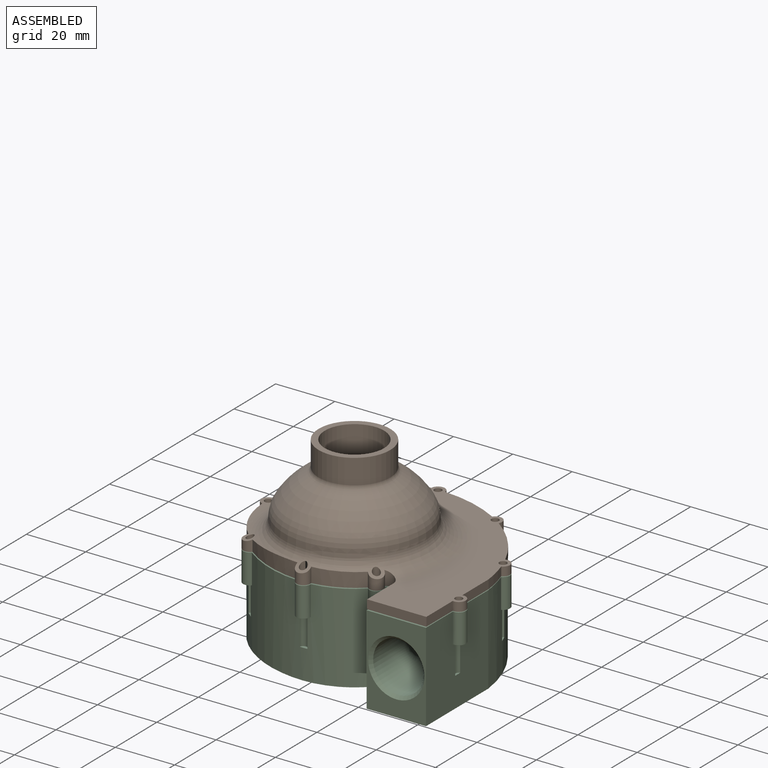
[diagram: assembled view]
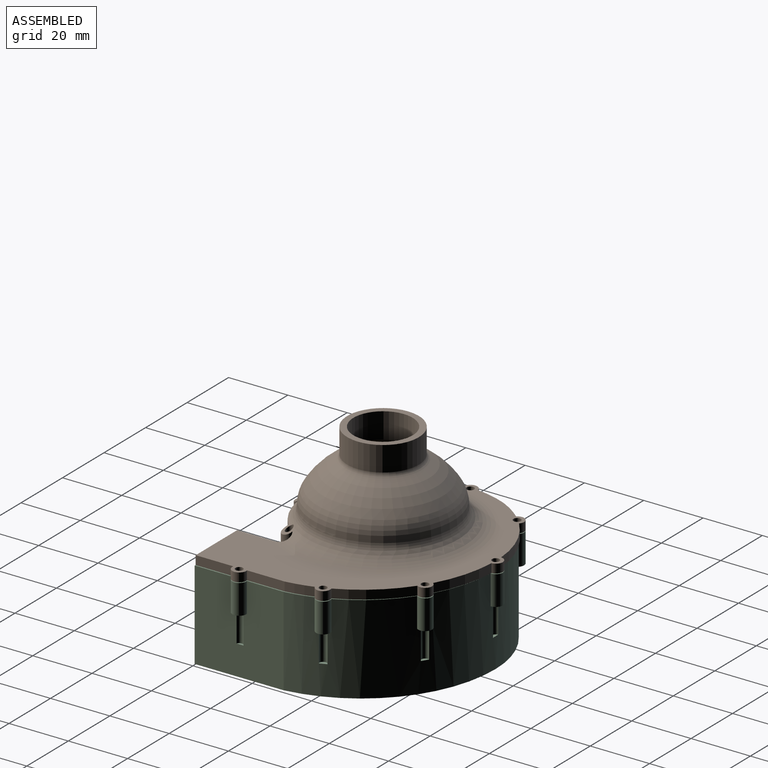
[diagram: assembled view, second angle]
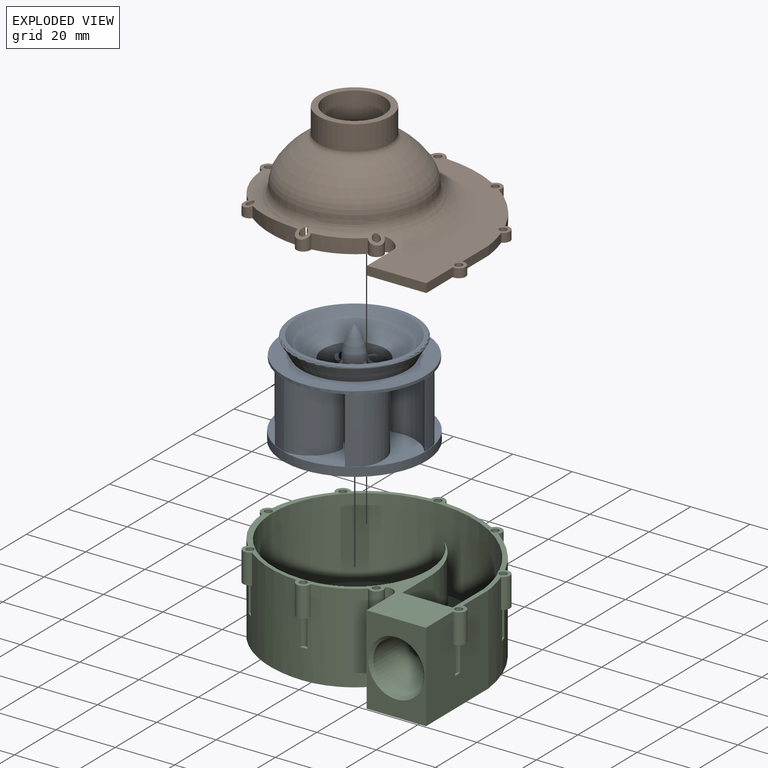
[diagram: exploded view]
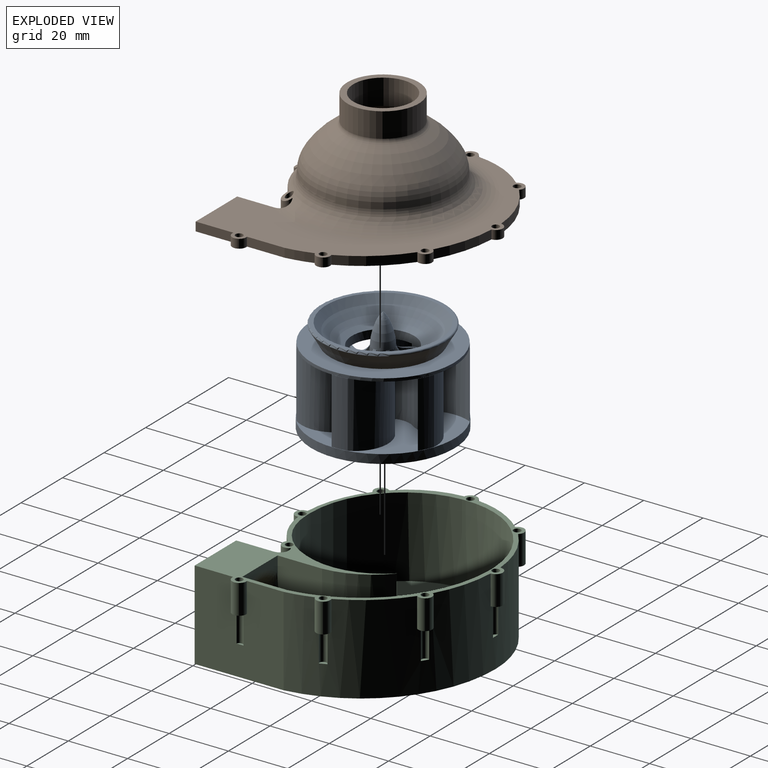
[diagram: exploded view, second angle]
ASSEMBLY  parts=3 mates=2
PART A: 136 faces, bbox 58.5x58.5x71 mm
  f0: cylinder r=3.66mm len=22mm, axis (0,0,1), area 59.7mm2, adj f56,f72,f86,f118
  f1: cylinder r=3.66mm len=22mm, axis (0,0,1), area 59.7mm2, adj f69,f71,f86,f118
  f2: cylinder r=3.66mm len=22mm, axis (0,0,1), area 59.7mm2, adj f66,f68,f86,f118
  f3: cylinder r=3.66mm len=22mm, axis (0,0,1), area 59.7mm2, adj f63,f65,f86,f118
  f4: cylinder r=3.66mm len=22mm, axis (0,0,1), area 59.7mm2, adj f60,f62,f86,f118
  f5: torus R=62.5mm, axis (0,0,1), area 33.3mm2, adj f31,f52,f84,f114,f125
  f6: torus R=62.5mm, axis (0,0,1), area 33.3mm2, adj f33,f37,f83,f113,f120
  f7: torus R=62.5mm, axis (0,0,1), area 33.3mm2, adj f36,f39,f81,f112,f121
  f8: torus R=62.5mm, axis (0,0,1), area 33.3mm2, adj f41,f43,f79,f111,f122
  f9: torus R=62.5mm, axis (0,0,1), area 33.3mm2, adj f45,f47,f77,f116,f123
  f10: torus R=62.5mm, axis (0,0,1), area 33.3mm2, adj f49,f51,f75,f115,f124
  f11: cylinder r=3.66mm len=22mm, axis (0,0,1), area 59.7mm2, adj f57,f59,f86,f118
  f12: cylinder r=10.72mm len=22mm, axis (0,0,1), area 468.3mm2, adj f14,f15,f17,f18,f20,f21,f23,f24
  f13: cylinder r=12.5mm len=0.63mm, axis (0,0,-1), area 0.1mm2, adj f14,f51,f73,f118
  f14: plane 19.09x2.8mm, normal (0,1,0), area 47mm2, adj f12,f13,f51,f64,f73,f75,f118
  f15: plane 19.08x1.62mm, normal (0.87,-0.5,0), area 35.6mm2, adj f12,f53,f84,f118
  f16: cylinder r=12.5mm len=0.63mm, axis (0,0,-1), area 0.1mm2, adj f17,f47,f76,f118
  f17: plane 19.09x2.42mm, normal (0.87,0.5,0), area 47mm2, adj f12,f16,f47,f67,f76,f77,f118
  f18: plane 19.08x1.87mm, normal (0,-1,0), area 35.6mm2, adj f12,f48,f75,f118
  f19: cylinder r=12.5mm len=0.63mm, axis (0,0,-1), area 0.1mm2, adj f20,f43,f78,f118
  f20: plane 19.09x2.42mm, normal (0.87,-0.5,0), area 47mm2, adj f12,f19,f43,f70,f78,f79,f118
  f21: plane 19.08x1.62mm, normal (-0.87,-0.5,0), area 35.6mm2, adj f12,f44,f77,f118
  f22: cylinder r=12.5mm len=0.63mm, axis (0,0,-1), area 0.1mm2, adj f23,f39,f80,f118
  f23: plane 19.09x2.8mm, normal (0,-1,0), area 47mm2, adj f12,f22,f39,f55,f80,f81,f118
  f24: plane 19.08x1.62mm, normal (-0.87,0.5,0), area 35.6mm2, adj f12,f40,f79,f118
  f25: cylinder r=12.5mm len=0.63mm, axis (0,0,-1), area 0.1mm2, adj f27,f37,f82,f118
  f26: plane 19.08x1.87mm, normal (0,1,0), area 35.6mm2, adj f12,f35,f81,f118
  f27: plane 19.09x2.42mm, normal (-0.87,-0.5,0), area 47mm2, adj f12,f25,f37,f58,f82,f83,f118
  f28: plane 19.09x2.42mm, normal (-0.87,0.5,0), area 47mm2, adj f12,f30,f31,f61,f84,f85,f118
  f29: plane 19.08x1.62mm, normal (0.87,0.5,0), area 35.6mm2, adj f12,f32,f83,f118
  f30: cylinder r=12.5mm len=0.63mm, axis (0,0,-1), area 0.1mm2, adj f28,f31,f85,f118
  f31: cylinder r=14.39mm len=22mm, axis (0,0,-1), area 296.5mm2, adj f5,f28,f30,f34,f84,f85,f96,f118
  f32: cylinder r=5.81mm len=19.08mm, axis (0,0,-1), area 0.4mm2, adj f29,f33,f83,f118
  f33: cylinder r=11.13mm len=22mm, axis (0,0,-1), area 388.5mm2, adj f6,f32,f34,f83,f92,f96,f113,f118
  f34: cylinder r=24mm len=22mm, axis (0,0,-1), area 113.2mm2, adj f31,f33,f96,f118
  f35: cylinder r=5.81mm len=19.08mm, axis (0,0,-1), area 0.4mm2, adj f26,f36,f81,f118
  f36: cylinder r=11.13mm len=22mm, axis (0,0,-1), area 388.5mm2, adj f7,f35,f38,f81,f87,f97,f112,f118
  f37: cylinder r=14.39mm len=22mm, axis (0,0,-1), area 296.5mm2, adj f6,f25,f27,f38,f82,f83,f97,f118
  f38: cylinder r=24mm len=22mm, axis (0,0,-1), area 113.2mm2, adj f36,f37,f97,f118
  f39: cylinder r=14.39mm len=22mm, axis (0,0,-1), area 296.5mm2, adj f7,f22,f23,f42,f80,f81,f98,f118
  f40: cylinder r=5.81mm len=19.08mm, axis (0,0,-1), area 0.4mm2, adj f24,f41,f79,f118
  f41: cylinder r=11.13mm len=22mm, axis (0,0,-1), area 388.5mm2, adj f8,f40,f42,f79,f88,f98,f111,f118
  f42: cylinder r=24mm len=22mm, axis (0,0,-1), area 113.2mm2, adj f39,f41,f98,f118
  f43: cylinder r=14.39mm len=22mm, axis (0,0,-1), area 296.5mm2, adj f8,f19,f20,f46,f78,f79,f99,f118
  f44: cylinder r=5.81mm len=19.08mm, axis (0,0,-1), area 0.4mm2, adj f21,f45,f77,f118
  f45: cylinder r=11.13mm len=22mm, axis (0,0,-1), area 388.5mm2, adj f9,f44,f46,f77,f89,f99,f116,f118
  f46: cylinder r=24mm len=22mm, axis (0,0,-1), area 113.2mm2, adj f43,f45,f99,f118
  f47: cylinder r=14.39mm len=22mm, axis (0,0,-1), area 296.5mm2, adj f9,f16,f17,f50,f76,f77,f100,f118
  f48: cylinder r=5.81mm len=19.08mm, axis (0,0,-1), area 0.4mm2, adj f18,f49,f75,f118
  f49: cylinder r=11.13mm len=22mm, axis (0,0,-1), area 388.5mm2, adj f10,f48,f50,f75,f90,f100,f115,f118
  f50: cylinder r=24mm len=22mm, axis (0,0,-1), area 113.2mm2, adj f47,f49,f100,f118
  f51: cylinder r=14.39mm len=22mm, axis (0,0,-1), area 296.5mm2, adj f10,f13,f14,f54,f73,f75,f101,f118
  f52: cylinder r=11.13mm len=22mm, axis (0,0,-1), area 388.5mm2, adj f5,f53,f54,f84,f91,f101,f114,f118
  f53: cylinder r=5.81mm len=19.08mm, axis (0,0,-1), area 0.4mm2, adj f15,f52,f84,f118
  f54: cylinder r=24mm len=22mm, axis (0,0,-1), area 113.2mm2, adj f51,f52,f101,f118
  f55: cone r=11.2mm half-angle=0deg, axis (0,0,1), area 0.4mm2, adj f23,f57,f104,f118
  f56: cone r=7.61mm half-angle=0deg, axis (0,0,1), area 162.2mm2, adj f0,f12,f104,f118,f133
  f57: cone r=7.53mm half-angle=0deg, axis (0,0,-1), area 153.3mm2, adj f11,f55,f104,f118,f133
  f58: cone r=11.2mm half-angle=0deg, axis (0,0,1), area 0.4mm2, adj f27,f60,f105,f118
  f59: cone r=7.61mm half-angle=0deg, axis (0,0,1), area 162.2mm2, adj f11,f12,f105,f118,f132
  f60: cone r=7.53mm half-angle=0deg, axis (0,0,-1), area 153.3mm2, adj f4,f58,f105,f118,f132
  f61: cone r=11.2mm half-angle=0deg, axis (0,0,1), area 0.4mm2, adj f28,f63,f106,f118
  f62: cone r=7.61mm half-angle=0deg, axis (0,0,1), area 162.2mm2, adj f4,f12,f106,f118,f131
  f63: cone r=7.53mm half-angle=0deg, axis (0,0,-1), area 153.3mm2, adj f3,f61,f106,f118,f131
  f64: cone r=11.2mm half-angle=0deg, axis (0,0,1), area 0.4mm2, adj f14,f66,f107,f118
  f65: cone r=7.61mm half-angle=0deg, axis (0,0,1), area 162.2mm2, adj f3,f12,f107,f118,f130
  f66: cone r=7.53mm half-angle=0deg, axis (0,0,-1), area 153.3mm2, adj f2,f64,f107,f118,f130
  f67: cone r=11.2mm half-angle=0deg, axis (0,0,1), area 0.4mm2, adj f17,f69,f108,f118
  f68: cone r=7.61mm half-angle=0deg, axis (0,0,1), area 162.2mm2, adj f2,f12,f108,f118,f129
  f69: cone r=7.53mm half-angle=0deg, axis (0,0,-1), area 153.3mm2, adj f1,f67,f108,f118,f129
  f70: cone r=11.2mm half-angle=0deg, axis (0,0,1), area 0.4mm2, adj f20,f72,f109,f118
  f71: cone r=7.61mm half-angle=0deg, axis (0,0,1), area 162.2mm2, adj f1,f12,f109,f118,f128
  f72: cone r=7.53mm half-angle=0deg, axis (0,0,-1), area 153.3mm2, adj f0,f70,f109,f118,f128
  f73: torus R=62.5mm, axis (0,0,1), area 0.6mm2, adj f13,f14,f51
  f74: torus R=62.5mm, axis (0,0,1), area 734.2mm2, adj f103,f127
  f75: plane 10.23x6.01mm, normal (0,0,-1), area 43.5mm2, adj f10,f12,f14,f18,f48,f49,f51,f90
  f76: torus R=62.5mm, axis (0,0,1), area 0.6mm2, adj f16,f17,f47
  f77: plane 9.12x8.82mm, normal (0,0,-1), area 43.5mm2, adj f9,f12,f17,f21,f44,f45,f47,f89
  f78: torus R=62.5mm, axis (0,0,1), area 0.6mm2, adj f19,f20,f43
  f79: plane 11.17x8.34mm, normal (0,0,-1), area 43.5mm2, adj f8,f12,f20,f24,f40,f41,f43,f88
  f80: torus R=62.5mm, axis (0,0,1), area 0.6mm2, adj f22,f23,f39
  f81: plane 10.23x6.01mm, normal (0,0,-1), area 43.5mm2, adj f7,f12,f23,f26,f35,f36,f39,f87
  f82: torus R=62.5mm, axis (0,0,1), area 0.6mm2, adj f25,f27,f37
  f83: plane 9.12x8.82mm, normal (0,0,-1), area 43.5mm2, adj f6,f12,f27,f29,f32,f33,f37,f92
  f84: plane 11.17x8.34mm, normal (0,0,-1), area 43.5mm2, adj f5,f12,f15,f28,f31,f52,f53,f91
  f85: torus R=62.5mm, axis (0,0,1), area 0.6mm2, adj f28,f30,f31
  f86: plane 7.32x7.32mm, normal (0,0,1), area 0.2mm2, adj f0,f1,f2,f3,f4,f11,f95,f128
  f87: plane 1.73x0.69mm, normal (0,1,0), area 0.6mm2, adj f36,f81,f112
  f88: plane 1.73x0.6mm, normal (-0.87,0.5,0), area 0.6mm2, adj f41,f79,f111
  f89: plane 1.73x0.6mm, normal (-0.87,-0.5,0), area 0.6mm2, adj f45,f77,f116
  f90: plane 1.73x0.69mm, normal (0,-1,0), area 0.6mm2, adj f49,f75,f115
  f91: plane 1.73x0.6mm, normal (0.87,-0.5,0), area 0.6mm2, adj f52,f84,f114
  f92: plane 1.73x0.6mm, normal (0.87,0.5,0), area 0.6mm2, adj f33,f83,f113
  f93: plane 21.44x21.44mm, normal (0,0,-1), area 14.5mm2, adj f12,f94
  f94: torus R=1.39mm, axis (0,0,-1), area 1076.6mm2, adj f93,f102
  f95: revolved ~7.3x7.3mm, area 141.5mm2, adj f86,f110
  f96: plane 4.52x2.82mm, normal (0,0,1), area 0.3mm2, adj f31,f33,f34,f126
  f97: plane 4.71x2.5mm, normal (0,0,1), area 0.3mm2, adj f36,f37,f38,f126
  f98: plane 5.33x0.33mm, normal (0,0,1), area 0.3mm2, adj f39,f41,f42,f126
  f99: plane 4.52x2.82mm, normal (0,0,1), area 0.3mm2, adj f43,f45,f46,f126
  f100: plane 4.71x2.5mm, normal (0,0,1), area 0.3mm2, adj f47,f49,f50,f126
  f101: plane 5.33x0.33mm, normal (0,0,1), area 0.3mm2, adj f51,f52,f54,f126
  f102: plane 40.81x40.81mm, normal (0,0,1), area 149.7mm2, adj f94,f103
  f103: torus R=20.41mm, axis (0,0,1), area 140.7mm2, adj f74,f102
  f104: plane 3.65x1.53mm, normal (0,0,1), area 3.3mm2, adj f12,f55,f56,f57,f133
  f105: plane 3.9x1.9mm, normal (0,0,1), area 3.3mm2, adj f12,f58,f59,f60,f132
  f106: plane 3.1x2.57mm, normal (0,0,1), area 3.3mm2, adj f12,f61,f62,f63,f131
  f107: plane 3.65x1.53mm, normal (0,0,1), area 3.3mm2, adj f12,f64,f65,f66,f130
  f108: plane 3.9x1.9mm, normal (0,0,1), area 3.3mm2, adj f12,f67,f68,f69,f129
  f109: plane 3.1x2.57mm, normal (0,0,1), area 3.3mm2, adj f12,f70,f71,f72,f128
  f110: revolved ~4.24x4.24mm, area 28.5mm2, adj f95
  f111: bspline ~13.29x5.31mm, area 2.6mm2, adj f8,f41,f79,f88
  f112: bspline ~3.11x2.83mm, area 2.6mm2, adj f7,f36,f81,f87
  f113: bspline ~13.29x6.46mm, area 2.6mm2, adj f6,f33,f83,f92
  f114: bspline ~13.29x5.31mm, area 2.6mm2, adj f5,f52,f84,f91
  f115: bspline ~3.11x2.83mm, area 2.6mm2, adj f10,f49,f75,f90
  f116: bspline ~13.29x6.46mm, area 2.6mm2, adj f9,f45,f77,f89
  f117: cylinder r=24.15mm len=48.3mm, axis (0,0,-1), area 455.3mm2, adj f118,f119
  f118: plane 48.3x48.3mm, normal (0,0,1), area 1212.7mm2, adj f0,f1,f2,f3,f4,f11,f12,f13
  f119: plane 48.3x48.3mm, normal (0,0,-1), area 1812.9mm2, adj f117,f134
  f120: plane 21.32x10.37mm, normal (0,0,-1), area 95.5mm2, adj f6,f33,f37,f126
  f121: plane 22.38x10.33mm, normal (0,0,-1), area 95.5mm2, adj f7,f36,f39,f126
  f122: plane 17.49x17.07mm, normal (0,0,-1), area 95.5mm2, adj f8,f41,f43,f126
  f123: plane 21.32x10.37mm, normal (0,0,-1), area 95.5mm2, adj f9,f45,f47,f126
  f124: plane 22.38x10.33mm, normal (0,0,-1), area 95.5mm2, adj f10,f49,f51,f126
  f125: plane 17.49x17.07mm, normal (0,0,-1), area 95.5mm2, adj f5,f31,f52,f126
  f126: cylinder r=23.95mm len=47.9mm, axis (0,0,-1), area 150.5mm2, adj f96,f97,f98,f99,f100,f101,f120,f121
  f127: plane 47.9x47.9mm, normal (0,0,1), area 808.3mm2, adj f74,f126
  f128: torus R=8.24mm, axis (0,0,1), area 6.3mm2, adj f71,f72,f86,f109
  f129: torus R=8.24mm, axis (0,0,1), area 6.3mm2, adj f68,f69,f86,f108
  f130: torus R=8.24mm, axis (0,0,1), area 6.3mm2, adj f65,f66,f86,f107
  f131: torus R=8.24mm, axis (0,0,1), area 6.3mm2, adj f62,f63,f86,f106
  f132: torus R=8.24mm, axis (0,0,1), area 6.3mm2, adj f59,f60,f86,f105
  f133: torus R=8.24mm, axis (0,0,1), area 6.3mm2, adj f56,f57,f86,f104
  f134: cylinder r=2.5mm len=25mm, axis (0,0,-1), area 392.7mm2, adj f119,f135
  f135: plane 5x5mm, normal (0,0,-1), area 19.6mm2, adj f134
PART B: 57 faces, bbox 91.2x84.9x33 mm
  f0: cylinder r=35.31mm len=7.96mm, axis (0,0,-1), area 28.7mm2, adj f2,f8,f24,f55
  f1: cylinder r=37mm len=3.39mm, axis (0,0,-1), area 10.4mm2, adj f3,f10,f24,f52
  f2: plane 84.43x72.1mm, normal (0,0,1), area 1372.6mm2, adj f0,f3,f4,f5,f6,f7,f8,f9
  f3: torus R=32.11mm, axis (0,0,1), area 955.5mm2, adj f1,f2,f4,f10,f11,f12,f13,f14
  f4: torus R=32.11mm, axis (0,0,1), area 0.1mm2, adj f2,f3,f15
  f5: cylinder r=45.31mm len=19.86mm, axis (0,0,-1), area 62.6mm2, adj f2,f6,f23,f24
  f6: cylinder r=2.34mm len=4.68mm, axis (0,0,-1), area 21mm2, adj f2,f5,f7,f24
  f7: cylinder r=35.31mm len=20.98mm, axis (0,0,-1), area 69.3mm2, adj f2,f6,f8,f24
  f8: cylinder r=2.34mm len=3.92mm, axis (0,0,-1), area 21.4mm2, adj f0,f2,f7,f24
  f9: cylinder r=2.34mm len=4.35mm, axis (0,0,-1), area 16.8mm2, adj f2,f24,f53,f56
  f10: cylinder r=2.34mm len=4.2mm, axis (0,0,-1), area 27.3mm2, adj f1,f3,f11,f24
  f11: cylinder r=37mm len=20.39mm, axis (0,0,-1), area 97.6mm2, adj f3,f10,f12,f24
  f12: cylinder r=2.34mm len=5.1mm, axis (0,0,-1), area 41.9mm2, adj f3,f11,f13,f24
  f13: cylinder r=25mm len=14.5mm, axis (0,0,-1), area 79.3mm2, adj f3,f12,f14,f24
  f14: cylinder r=2.34mm len=4.8mm, axis (0,0,-1), area 38.4mm2, adj f3,f13,f24,f34
  f15: plane 12.85x3.01mm, normal (-1,0,0), area 38.5mm2, adj f2,f4,f16,f24,f34
  f16: plane 20x3mm, normal (0,-1,0), area 60mm2, adj f2,f15,f17,f24
  f17: plane 12.69x3mm, normal (1,0,0), area 38.1mm2, adj f2,f16,f18,f24
  f18: cylinder r=2.34mm len=4.69mm, axis (0,0,-1), area 24.8mm2, adj f2,f17,f19,f24
  f19: plane 12.7x3mm, normal (1,0,0), area 38.1mm2, adj f2,f18,f20,f24
  f20: cylinder r=45.31mm len=8.83mm, axis (0,0,-1), area 27.2mm2, adj f2,f19,f21,f24
  f21: cylinder r=2.34mm len=4.52mm, axis (0,0,-1), area 21.8mm2, adj f2,f20,f22,f24
  f22: cylinder r=45.31mm len=18.43mm, axis (0,0,-1), area 72.4mm2, adj f2,f21,f23,f24
  f23: cylinder r=2.34mm len=4.28mm, axis (0,0,-1), area 21.6mm2, adj f2,f5,f22,f24
  f24: plane 84.43x72.1mm, normal (0,0,-1), area 2326.2mm2, adj f0,f1,f5,f6,f7,f8,f9,f10
  f25: cylinder r=1.25mm len=5.48mm, axis (0,0,1), area 38.5mm2, adj f3,f24,f48
  f26: cylinder r=1.25mm len=5.8mm, axis (0,0,1), area 38mm2, adj f3,f24,f39,f51
  f27: cylinder r=1.25mm len=3.95mm, axis (0,0,1), area 28.3mm2, adj f3,f24
  f28: cylinder r=1.25mm len=3mm, axis (0,0,1), area 23.6mm2, adj f2,f24
  f29: cylinder r=1.25mm len=3mm, axis (0,0,1), area 23.6mm2, adj f2,f24
  f30: cylinder r=1.25mm len=3mm, axis (0,0,1), area 23.6mm2, adj f2,f24
  f31: cylinder r=1.25mm len=3mm, axis (0,0,1), area 23.6mm2, adj f2,f24
  f32: cylinder r=1.25mm len=3mm, axis (0,0,1), area 23.6mm2, adj f2,f24
  f33: cylinder r=1.25mm len=3mm, axis (0,0,1), area 23.6mm2, adj f2,f24
  f34: cylinder r=3mm len=4.85mm, axis (0,0,1), area 26.1mm2, adj f3,f14,f15,f24
  f35: cylinder r=25mm len=50mm, axis (0,0,1), area 450.7mm2, adj f24,f38
  f36: cylinder r=21.75mm len=43.5mm, axis (0,0,-1), area 865.3mm2, adj f37,f40
  f37: torus R=6.5mm, axis (0,0,-1), area 398.5mm2, adj f36,f38
  f38: cone r=20.22mm half-angle=89.2deg, axis (0,0,-1), area 678.8mm2, adj f35,f37
  f39: cone r=23.81mm half-angle=16.7deg, axis (0,0,-1), area 0mm2, adj f26
  f40: torus R=0.55mm, axis (0,0,-1), area 1598.6mm2, adj f36,f41
  f41: torus R=13.04mm, axis (0,0,-1), area 169mm2, adj f40,f42
  f42: cylinder r=10mm len=20mm, axis (0,0,-1), area 543mm2, adj f41,f43
  f43: plane 24.18x24.18mm, normal (0,0,1), area 145.1mm2, adj f42,f44
  f44: cylinder r=12.09mm len=24.18mm, axis (0,0,-1), area 637.6mm2, adj f43,f45
  f45: torus R=13.98mm, axis (0,0,-1), area 134mm2, adj f44,f46
  f46: revolved ~44.28x44.28mm, area 1410.8mm2, adj f45,f47
  f47: torus R=13.81mm, axis (0,0,1), area 856mm2, adj f46,f48,f49,f50,f51
  f48: bspline ~3.9x2.52mm, area 4.7mm2, adj f25,f47,f49,f50
  f49: torus R=28.81mm, axis (0,0,-1), area 76.3mm2, adj f3,f47,f48,f51
  f50: torus R=28.81mm, axis (0,0,-1), area 563.4mm2, adj f3,f47,f48,f51
  f51: bspline ~3.88x2.07mm, area 6.4mm2, adj f26,f47,f49,f50
  f52: cylinder r=29.08mm len=12.09mm, axis (0,0,-1), area 41.6mm2, adj f1,f2,f3,f24,f54
  f53: cylinder r=1.77mm len=3mm, axis (0,0,-1), area 2.1mm2, adj f2,f9,f24,f54
  f54: cylinder r=32.39mm len=4.77mm, axis (0,0,-1), area 14.5mm2, adj f2,f24,f52,f53
  f55: cylinder r=36.16mm len=10.54mm, axis (0,0,-1), area 32.8mm2, adj f0,f2,f24,f56
  f56: cylinder r=2.09mm len=3mm, axis (0,0,-1), area 1.2mm2, adj f2,f9,f24,f55
PART C: 81 faces, bbox 95.6x91x42 mm
  f0: plane 22.33x22.33mm, normal (0,0,-1), area 11.5mm2, adj f76,f78
  f1: plane 84.43x72.39mm, normal (0,0,1), area 743.6mm2, adj f2,f3,f4,f5,f6,f7,f8,f9
  f2: cylinder r=27.26mm len=27mm, axis (0,0,1), area 576.2mm2, adj f1,f17,f18,f23,f75
  f3: cylinder r=31.5mm len=27mm, axis (0,0,1), area 735.8mm2, adj f1,f5,f18,f74
  f4: cylinder r=23.3mm len=27mm, axis (0,0,1), area 748.9mm2, adj f1,f18,f73,f74
  f5: cylinder r=30mm len=39.85mm, axis (0,0,-1), area 1164.4mm2, adj f1,f3,f6,f18,f35
  f6: cylinder r=33.82mm len=27mm, axis (0,0,1), area 740.3mm2, adj f1,f5,f18,f19,f32
  f7: plane 17x4.51mm, normal (0,1,0), area 41.7mm2, adj f1,f16,f17,f27
  f8: plane 30x20mm, normal (0,-1,0), area 316.5mm2, adj f1,f11,f12,f15,f77
  f9: cylinder r=37mm len=30mm, axis (0,0,-1), area 748.6mm2, adj f1,f10,f15,f20,f40,f41,f42,f43
  f10: cylinder r=25mm len=30mm, axis (0,0,-1), area 576.2mm2, adj f1,f9,f15,f21,f42,f43,f44,f45
  f11: plane 30x12.68mm, normal (-1,0,0), area 380.4mm2, adj f1,f8,f15,f21
  f12: plane 30x30mm, normal (1,0,0), area 829.9mm2, adj f1,f8,f13,f15,f53,f54,f55,f56
  f13: cylinder r=45.31mm len=45mm, axis (0,0,-1), area 1795.8mm2, adj f1,f12,f14,f15,f33,f34,f46,f47
  f14: cylinder r=35.31mm len=32.03mm, axis (0,0,-1), area 1096.4mm2, adj f1,f13,f15,f20,f33,f34,f38,f39
  f15: plane 79.82x70mm, normal (0,0,-1), area 2038mm2, adj f8,f9,f10,f11,f12,f13,f14,f20
  f16: plane 29.06x17.7mm, normal (-1,0,0), area 320.2mm2, adj f1,f7,f19,f23,f26,f28,f31
  f17: plane 29.06x17.7mm, normal (1,0,0), area 320.2mm2, adj f1,f2,f7,f23,f24,f25,f29
  f18: plane 75.41x62.04mm, normal (0,0,1), area 2829mm2, adj f2,f3,f4,f5,f6,f19,f23,f73
  f19: cylinder r=43.82mm len=43.5mm, axis (0,0,1), area 1676.4mm2, adj f1,f6,f16,f18,f23,f32,f48,f49
  f20: cylinder r=30mm len=34.38mm, axis (0,0,-1), area 1042.2mm2, adj f1,f9,f14,f15,f36,f37,f40,f41
  f21: cylinder r=3mm len=30mm, axis (0,0,-1), area 212.3mm2, adj f1,f10,f11,f15,f44,f45
  f22: cylinder r=8.5mm len=21.24mm, axis (0,-1,0), area 744.7mm2, adj f24,f25,f26,f27,f28,f29,f30,f31
  f23: cylinder r=20mm len=17.8mm, axis (-1,0,0), area 204.9mm2, adj f2,f16,f17,f18,f19,f30
  f24: bspline ~8x6.07mm, area 13.3mm2, adj f17,f22,f25
  f25: bspline ~6.33x5.21mm, area 11.7mm2, adj f17,f22,f24,f27
  f26: bspline ~8.56x6.32mm, area 13.3mm2, adj f16,f22,f28
  f27: torus R=13.5mm, axis (0,-1,0), area 110.4mm2, adj f7,f22,f25,f28
  f28: bspline ~6.33x5.21mm, area 11.7mm2, adj f16,f22,f26,f27
  f29: bspline ~7.85x6.71mm, area 12.8mm2, adj f17,f22,f30
  f30: bspline ~19.77x7.94mm, area 58.5mm2, adj f22,f23,f29,f31
  f31: bspline ~6.79x5.45mm, area 12.8mm2, adj f16,f22,f30
  f32: cylinder r=38.21mm len=10mm, axis (0,0,1), area 17.2mm2, adj f1,f6,f19
  f33: cylinder r=2.34mm len=10mm, axis (0,0,1), area 75.9mm2, adj f1,f13,f14,f34
  f34: plane 4.69x2.46mm, normal (0,0,-1), area 6.4mm2, adj f13,f14,f33,f72
  f35: cylinder r=38.21mm len=10mm, axis (0,0,1), area 12.5mm2, adj f1,f5
  f36: cylinder r=2.34mm len=10mm, axis (0,0,1), area 66.4mm2, adj f1,f20,f37
  f37: plane 4.63x2.02mm, normal (0,0,-1), area 5.3mm2, adj f20,f36,f69
  f38: cylinder r=2.34mm len=10mm, axis (0,0,1), area 76.4mm2, adj f1,f14,f39
  f39: plane 4.1x4.09mm, normal (0,0,-1), area 6.4mm2, adj f14,f38,f68
  f40: plane 4.08x3.86mm, normal (0,0,-1), area 6mm2, adj f9,f20,f41,f66
  f41: cylinder r=2.34mm len=10mm, axis (0,0,1), area 72.9mm2, adj f1,f9,f20,f40
  f42: cylinder r=2.34mm len=10mm, axis (0,0,1), area 77.3mm2, adj f1,f9,f10,f43
  f43: plane 4.69x2.56mm, normal (0,0,-1), area 6.5mm2, adj f9,f10,f42,f64
  f44: plane 4.03x3.95mm, normal (0,0,-1), area 6.2mm2, adj f10,f21,f45,f62
  f45: cylinder r=2.34mm len=10mm, axis (0,0,1), area 73.3mm2, adj f1,f10,f21,f44
  f46: cylinder r=2.34mm len=10mm, axis (0,0,1), area 76.2mm2, adj f1,f13,f47
  f47: plane 4.39x3.7mm, normal (0,0,-1), area 6.4mm2, adj f13,f46,f60
  f48: cylinder r=38.21mm len=10mm, axis (0,0,1), area 34.6mm2, adj f1,f19,f49,f50
  f49: plane 3.4x1.47mm, normal (0,0,-1), area 0.4mm2, adj f19,f48,f50
  f50: cylinder r=2.34mm len=10mm, axis (0,0,1), area 3mm2, adj f1,f19,f48,f49
  f51: cylinder r=2.34mm len=10mm, axis (0,0,1), area 73.6mm2, adj f1,f13,f52
  f52: plane 4.53x3.2mm, normal (0,0,-1), area 6.1mm2, adj f13,f51,f58
  f53: cylinder r=2.34mm len=10mm, axis (0,0,1), area 81.2mm2, adj f1,f12,f54
  f54: plane 4.69x2.72mm, normal (0,0,-1), area 7mm2, adj f12,f53,f55
  f55: cylinder r=1.25mm len=20mm, axis (0,0,1), area 110.2mm2, adj f1,f12,f54,f56
  f56: plane 2.38x0.87mm, normal (0,0,1), area 1.5mm2, adj f12,f55
  f57: plane 2.43x1.75mm, normal (0,0,1), area 2.6mm2, adj f13,f58
  f58: cylinder r=1.25mm len=20mm, axis (0,0,1), area 118.7mm2, adj f1,f13,f52,f57
  f59: plane 2.26x1.85mm, normal (0,0,1), area 2.3mm2, adj f13,f60
  f60: cylinder r=1.25mm len=20mm, axis (0,0,1), area 116.2mm2, adj f1,f13,f47,f59
  f61: plane 2.19x2.07mm, normal (0,0,1), area 2.5mm2, adj f10,f62
  f62: cylinder r=1.25mm len=20mm, axis (0,0,1), area 117.7mm2, adj f1,f10,f44,f61
  f63: plane 2.49x1.17mm, normal (0,0,1), area 2.2mm2, adj f9,f10,f64
  f64: cylinder r=1.25mm len=20mm, axis (0,0,1), area 115.5mm2, adj f1,f9,f10,f43,f63
  f65: plane 2.25x2.14mm, normal (0,0,1), area 2.7mm2, adj f9,f66
  f66: cylinder r=1.25mm len=20mm, axis (0,0,1), area 119.7mm2, adj f1,f9,f40,f65
  f67: plane 2.08x2.07mm, normal (0,0,1), area 2.3mm2, adj f14,f68
  f68: cylinder r=1.25mm len=20mm, axis (0,0,1), area 116.2mm2, adj f1,f14,f39,f67
  f69: cylinder r=1.25mm len=20mm, axis (0,0,1), area 126.5mm2, adj f1,f20,f37,f70
  f70: plane 2.5x1.7mm, normal (0,0,1), area 3.5mm2, adj f20,f69
  f71: plane 2.5x1.21mm, normal (0,0,1), area 2.3mm2, adj f13,f14,f72
  f72: cylinder r=1.25mm len=20mm, axis (0,0,1), area 116.6mm2, adj f1,f13,f14,f34,f71
  f73: cylinder r=25mm len=27.19mm, axis (0,0,-1), area 789.5mm2, adj f1,f4,f18,f75
  f74: cylinder r=25mm len=27mm, axis (0,0,-1), area 57.8mm2, adj f1,f3,f4,f18
  f75: cylinder r=0.05mm len=27mm, axis (0,0,-1), area 4.1mm2, adj f1,f2,f18,f73
  f76: cylinder r=11mm len=22mm, axis (0,0,-1), area 207.3mm2, adj f0,f18
  f77: cone r=8.5mm half-angle=45deg, axis (0,-1,0), area 80mm2, adj f8,f22
  f78: cylinder r=11.16mm len=22.33mm, axis (0,0,1), area 350.8mm2, adj f0,f79
  f79: plane 26.76x26.76mm, normal (0,0,-1), area 170.6mm2, adj f78,f80
  f80: torus R=26.61mm, axis (0,0,1), area 1783.5mm2, adj f9,f10,f15,f79
PLACE A rot(axis=(0,0,1),127.6deg) t=(-15.06,-0.4,2.1)mm
PLACE B t=(12.27,33.84,29.3)mm
PLACE C t=(-14.04,-1.7,-0.9)mm fixed
MATE slider B.f18 <-> C.f53  axis (0,0,-1) through (31.34,-16.42,29.3)mm
MATE revolute A.f117 <-> C.f76  axis (0,0,-1) through (-15.06,-0.4,2.1)mm
